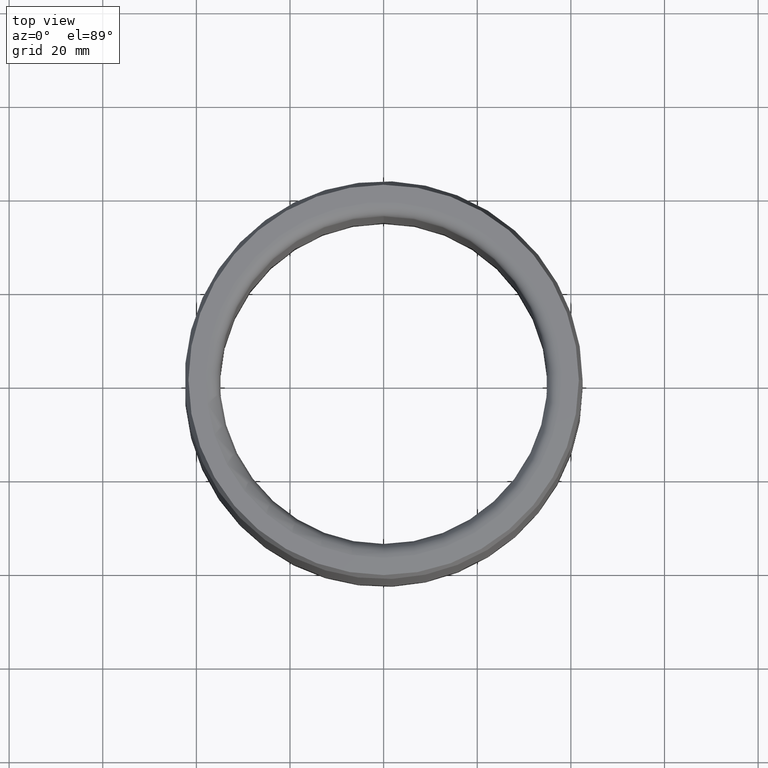
[diagram: clean part render]
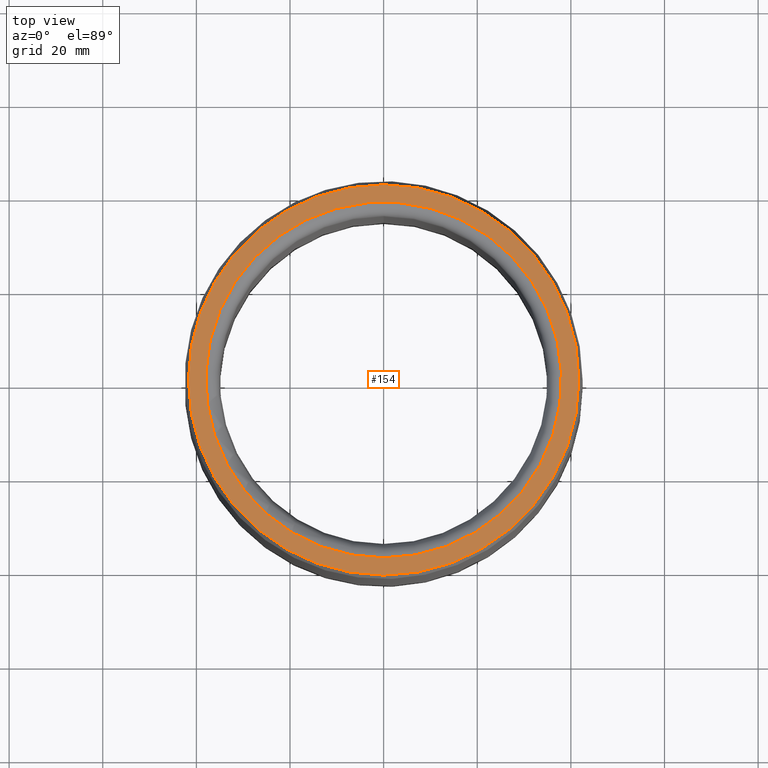
[diagram: same view with one face highlighted and labeled with its STEP entity id]
A machine part, top view. The second image highlights one B-rep face of the part: STEP entity #154.
In plain terms, the highlighted planar face has unit normal (0, 0, 1).
Its self-contained STEP definition (entity closure, byte-faithful):
#154=ADVANCED_FACE('',(#166,#167),#168,.T.);
#166=FACE_BOUND('',#191,.T.);
#167=FACE_OUTER_BOUND('',#192,.T.);
#168=PLANE('',#193);
#191=EDGE_LOOP('',(#217));
#192=EDGE_LOOP('',(#218));
#193=AXIS2_PLACEMENT_3D('',#219,#220,#221);
#217=ORIENTED_EDGE('',*,*,#254,.T.);
#218=ORIENTED_EDGE('',*,*,#255,.F.);
#219=CARTESIAN_POINT('',(0.0416961524227066,6.93889390390723E-018,0.1));
#220=DIRECTION('',(0.0,6.12323399573677E-017,1.0));
#221=DIRECTION('',(0.0,-1.0,6.12323399573677E-017));
#254=EDGE_CURVE('',#264,#264,#265,.F.);
#255=EDGE_CURVE('',#266,#266,#267,.T.);
#264=VERTEX_POINT('',#280);
#265=CIRCLE('',#281,0.038);
#266=VERTEX_POINT('',#282);
#267=CIRCLE('',#283,0.0416961524227066);
#280=CARTESIAN_POINT('',(0.0,-0.038,0.1));
#281=AXIS2_PLACEMENT_3D('',#298,#299,#300);
#282=CARTESIAN_POINT('',(0.0416961524227066,6.93889390390723E-018,0.1));
#283=AXIS2_PLACEMENT_3D('',#301,#302,#303);
#298=CARTESIAN_POINT('',(0.0,6.12323399573677E-018,0.1));
#299=DIRECTION('',(0.0,6.12323399573677E-017,1.0));
#300=DIRECTION('',(0.0,-1.0,6.12323399573677E-017));
#301=CARTESIAN_POINT('',(0.0,6.93889390390723E-018,0.1));
#302=DIRECTION('',(0.0,-6.12323399573677E-017,-1.0));
#303=DIRECTION('',(0.0,1.0,-6.12323399573677E-017));